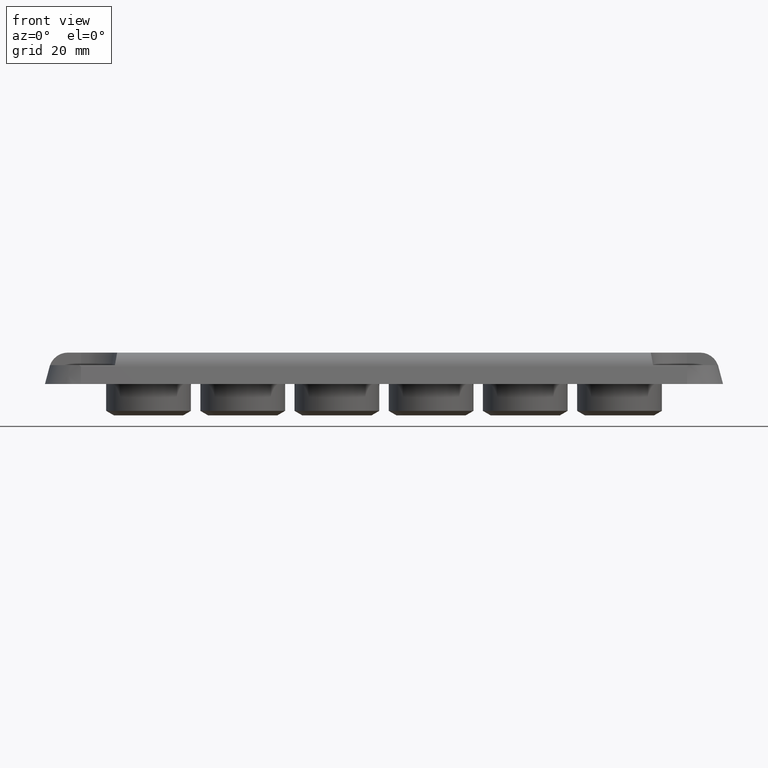
[diagram: clean part render]
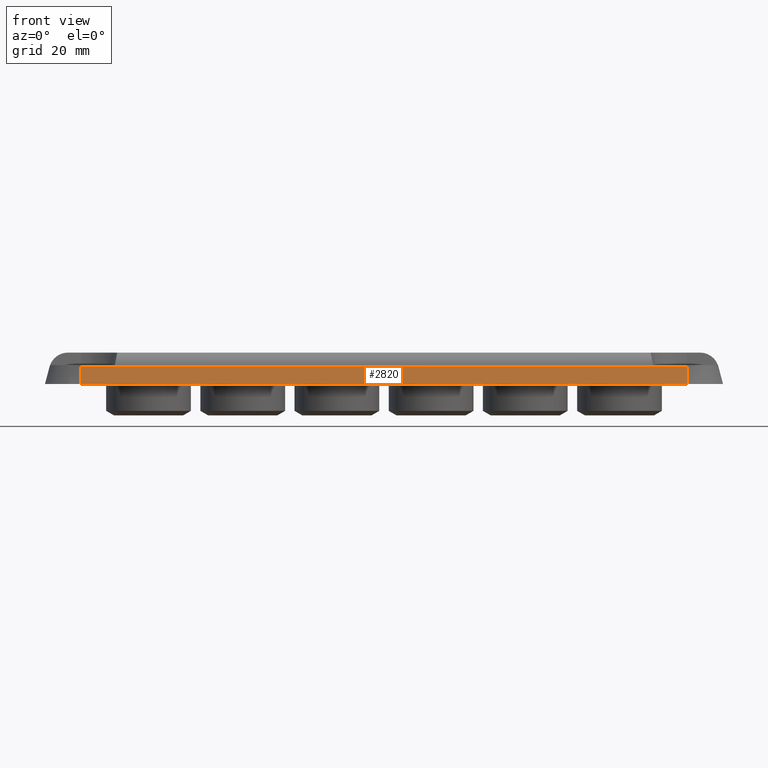
[diagram: same view with one face highlighted and labeled with its STEP entity id]
A machine part, front view. The second image highlights one B-rep face of the part: STEP entity #2820.
In plain terms, the highlighted planar face has unit normal (0, -0.9659, 0.2588).
Its self-contained STEP definition (entity closure, byte-faithful):
#91 = VERTEX_POINT ( 'NONE', #4095 ) ;
#151 = CARTESIAN_POINT ( 'NONE',  ( -96.49999999999998600, -42.50000000000001400, 9.711114224141915900E-015 ) ) ;
#215 = LINE ( 'NONE', #4301, #1815 ) ;
#303 = VERTEX_POINT ( 'NONE', #4070 ) ;
#517 = FACE_OUTER_BOUND ( 'NONE', #3124, .T. ) ;
#585 = CARTESIAN_POINT ( 'NONE',  ( 96.49999999999998600, -42.49999999999998600, -9.974659986866661300E-015 ) ) ;
#851 = EDGE_CURVE ( 'NONE', #303, #4014, #3789, .T. ) ;
#887 = VECTOR ( 'NONE', #3904, 1000.000000000000000 ) ;
#1018 = VECTOR ( 'NONE', #1053, 1000.000000000000000 ) ;
#1053 = DIRECTION ( 'NONE',  ( -1.000000000000000000, -0.0000000000000000000, -0.0000000000000000000 ) ) ;
#1225 = VECTOR ( 'NONE', #4002, 1000.000000000000000 ) ;
#1497 = VERTEX_POINT ( 'NONE', #4840 ) ;
#1515 = ORIENTED_EDGE ( 'NONE', *, *, #851, .T. ) ;
#1717 = PLANE ( 'NONE',  #4204 ) ;
#1815 = VECTOR ( 'NONE', #3114, 1000.000000000000000 ) ;
#1982 = ORIENTED_EDGE ( 'NONE', *, *, #4679, .T. ) ;
#2115 = CARTESIAN_POINT ( 'NONE',  ( -96.49999999999998600, -42.50000000000001400, 0.0000000000000000000 ) ) ;
#2321 = ORIENTED_EDGE ( 'NONE', *, *, #4868, .F. ) ;
#2480 = DIRECTION ( 'NONE',  ( 0.0000000000000000000, -0.2588190451025213500, -0.9659258262890680900 ) ) ;
#2820 = ADVANCED_FACE ( 'NONE', ( #517 ), #1717, .T. ) ;
#3114 = DIRECTION ( 'NONE',  ( 1.000000000000000000, 0.0000000000000000000, 0.0000000000000000000 ) ) ;
#3124 = EDGE_LOOP ( 'NONE', ( #2321, #1515, #4267, #1982 ) ) ;
#3167 = DIRECTION ( 'NONE',  ( 0.0000000000000000000, -0.9659258262890680900, 0.2588190451025213500 ) ) ;
#3398 = EDGE_CURVE ( 'NONE', #4014, #1497, #4732, .T. ) ;
#3789 = LINE ( 'NONE', #4437, #1018 ) ;
#3819 = CARTESIAN_POINT ( 'NONE',  ( -96.49999999999998600, -41.01210110554944100, 5.552914270615125300 ) ) ;
#3904 = DIRECTION ( 'NONE',  ( -0.0000000000000000000, -0.2588190451025213500, -0.9659258262890680900 ) ) ;
#4002 = DIRECTION ( 'NONE',  ( -6.246670936615559500E-016, -0.2588190451025213500, -0.9659258262890680900 ) ) ;
#4014 = VERTEX_POINT ( 'NONE', #3819 ) ;
#4070 = CARTESIAN_POINT ( 'NONE',  ( 96.49999999999998600, -41.01210110554939800, 5.552914270615115600 ) ) ;
#4095 = CARTESIAN_POINT ( 'NONE',  ( 96.49999999999998600, -42.50000000000001400, 0.0000000000000000000 ) ) ;
#4204 = AXIS2_PLACEMENT_3D ( 'NONE', #2115, #3167, #2480 ) ;
#4236 = LINE ( 'NONE', #585, #1225 ) ;
#4267 = ORIENTED_EDGE ( 'NONE', *, *, #3398, .T. ) ;
#4301 = CARTESIAN_POINT ( 'NONE',  ( -96.49999999999998600, -42.50000000000001400, 0.0000000000000000000 ) ) ;
#4437 = CARTESIAN_POINT ( 'NONE',  ( -96.49999999999998600, -41.01210110554943400, 5.552914270615124400 ) ) ;
#4679 = EDGE_CURVE ( 'NONE', #1497, #91, #215, .T. ) ;
#4732 = LINE ( 'NONE', #151, #887 ) ;
#4840 = CARTESIAN_POINT ( 'NONE',  ( -96.49999999999998600, -42.49999999999997900, 0.0000000000000000000 ) ) ;
#4868 = EDGE_CURVE ( 'NONE', #303, #91, #4236, .T. ) ;